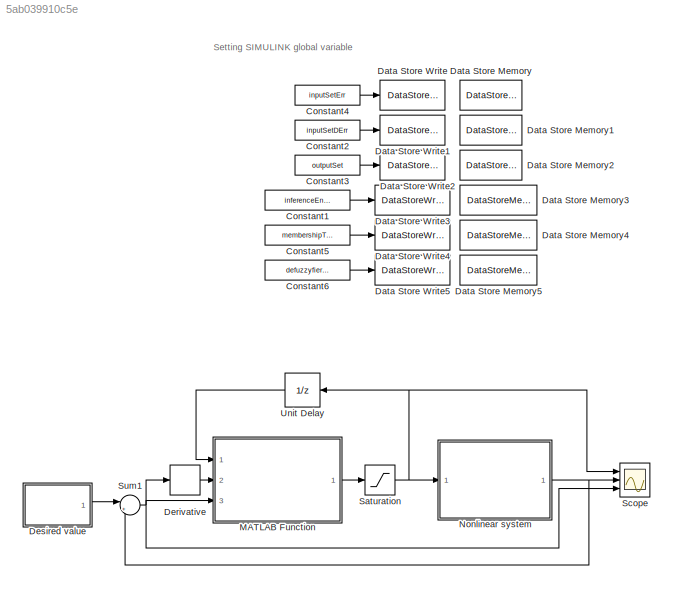
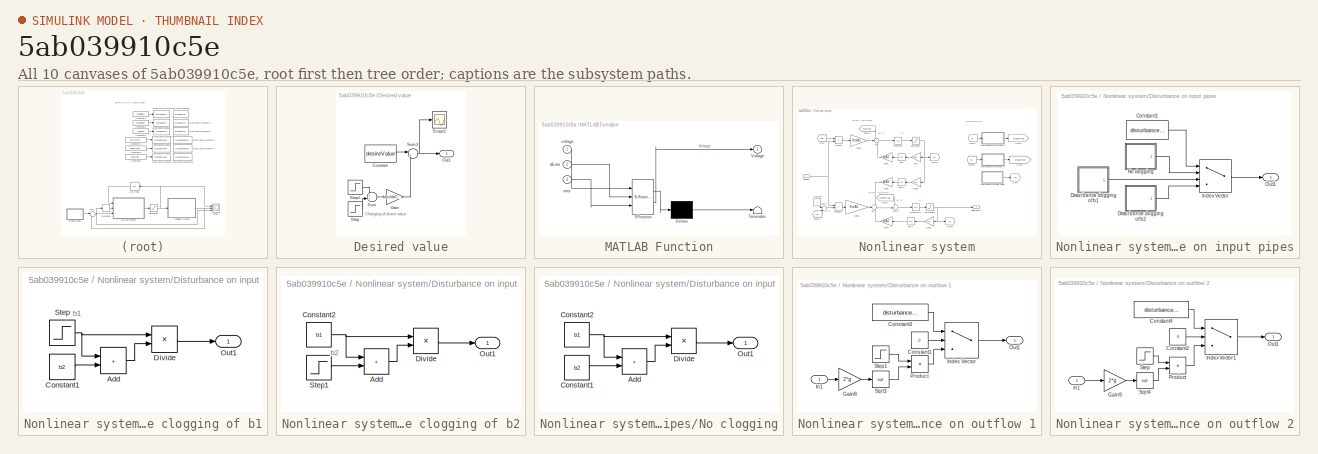
[diagram: thumbnail index - all 10 canvases of the model, root first then tree order]
MODEL slx_5ab039910c5e
KIND model
CONFIG AbsTol = auto
CONFIG EnableMultiTasking = off
CONFIG FixedStep = T_s
CONFIG MaxStep = auto
CONFIG MinStep = auto
CONFIG RelTol = 1e-3
CONFIG SampleTimeConstraint = Unconstrained
CONFIG SolverName = FixedStepAuto
CONFIG StartTime = 0.0
CONFIG StopTime = 600
BLOCK [Constant] Constant1
  Value = inferenceEngine
BLOCK [Constant] Constant2
  Value = inputSetDErr
BLOCK [Constant] Constant3
  Value = outputSet
BLOCK [Constant] Constant4
  Value = inputSetErr
BLOCK [Constant] Constant5
  Value = membershipType
BLOCK [Constant] Constant6
  Value = defuzzyfierType
BLOCK [DataStoreMemory] Data Store Memory
  DataStoreName = inputSetErr
  InitialValue = inputSetErr
  OutDataTypeStr = double
  ReadBeforeWriteMsg = warning
  ShowAdditionalParam = off
  SignalType = real
  WriteAfterReadMsg = warning
  WriteAfterWriteMsg = warning
BLOCK [DataStoreMemory] Data Store Memory1
  DataStoreName = inputSetDErr
  InitialValue = inputSetDErr
  OutDataTypeStr = double
  ReadBeforeWriteMsg = warning
  ShowAdditionalParam = off
  SignalType = real
  WriteAfterReadMsg = warning
  WriteAfterWriteMsg = warning
BLOCK [DataStoreMemory] Data Store Memory2
  DataStoreName = outputSet
  InitialValue = outputSet
  OutDataTypeStr = double
  ShowAdditionalParam = off
  SignalType = real
BLOCK [DataStoreMemory] Data Store Memory3
  DataStoreName = inferenceEngine
  InitialValue = inferenceEngine
  OutDataTypeStr = double
  ReadBeforeWriteMsg = warning
  ShowAdditionalParam = off
  SignalType = real
  WriteAfterReadMsg = warning
  WriteAfterWriteMsg = warning
BLOCK [DataStoreMemory] Data Store Memory4
  DataStoreName = membershipType
  InitialValue = membershipType
  OutDataTypeStr = double
  ReadBeforeWriteMsg = warning
  ShowAdditionalParam = off
  SignalType = real
  WriteAfterReadMsg = warning
  WriteAfterWriteMsg = warning
BLOCK [DataStoreMemory] Data Store Memory5
  DataStoreName = defuzzyfierType
  InitialValue = defuzzyfierType
  OutDataTypeStr = double
  ReadBeforeWriteMsg = warning
  ShowAdditionalParam = off
  SignalType = real
  WriteAfterReadMsg = warning
  WriteAfterWriteMsg = warning
BLOCK [DataStoreWrite] Data Store Write
  DataStoreName = inputSetErr
  Ports = [1]
BLOCK [DataStoreWrite] Data Store Write1
  DataStoreName = inputSetDErr
  Ports = [1]
BLOCK [DataStoreWrite] Data Store Write2
  DataStoreName = outputSet
  Ports = [1]
BLOCK [DataStoreWrite] Data Store Write3
  DataStoreName = inferenceEngine
  Ports = [1]
BLOCK [DataStoreWrite] Data Store Write4
  DataStoreName = membershipType
  Ports = [1]
BLOCK [DataStoreWrite] Data Store Write5
  DataStoreName = defuzzyfierType
  Ports = [1]
BLOCK [Derivative] Derivative
BLOCK [SubSystem] Desired value
  Ports = [0, 1]
  RequestExecContextInheritance = off
BLOCK [Constant] Desired value/Constant
  Value = desireValue
BLOCK [Gain] Desired value/Gain
  Gain = desValChange
BLOCK [Outport] Desired value/Out1
BLOCK [Scope] Desired value/Scope1
  Floating = off
  NumInputPorts = 1
  Ports = [1]
  ScopeSpecificationString = Simulink.scopes.TimeScopeBlockCfg('CurrentConfiguration', extmgr.ConfigurationSet(extmgr.Configuration('Core','General UI',true),extmgr.Configuration('Core','Source UI',true),extmgr.Configuration('Sources','WiredSimulink',true,'DataLogging',true,'DataLoggingSaveFormat','StructureWithTime','DataLoggingVariableName','ScopeData1'),extmgr.Configuration('Visuals','Time Domain',true,'SerializedDisplays'...<+1565ch>
BLOCK [Step] Desired value/Step
  After = desireValue
  SampleTime = 0
  Time = SimTime/3
BLOCK [Step] Desired value/Step1
  After = -desireValue/2
  SampleTime = 0
  Time = 2*SimTime/3
BLOCK [Sum] Desired value/Sum
  Ports = [2, 1]
BLOCK [Sum] Desired value/Sum2
  Inputs = |++
  Ports = [2, 1]
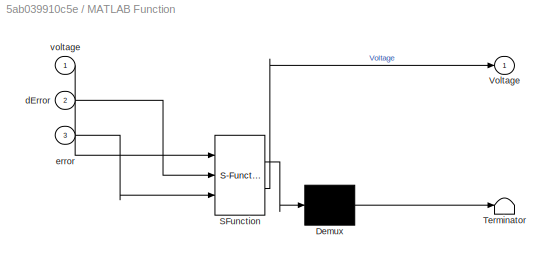
BLOCK [SubSystem] MATLAB Function
  ErrorFcn = Stateflow.Translate.translate
  PermitHierarchicalResolution = ExplicitOnly
  Ports = [3, 1]
  RequestExecContextInheritance = off
  SFBlockType = MATLAB Function
  TreatAsAtomicUnit = on
BLOCK [Demux] MATLAB Function/ Demux 
  Outputs = 1
  Ports = [1, 1]
BLOCK [S-Function] MATLAB Function/ SFunction 
  EnableBusSupport = on
  FunctionName = sf_sfun
  PortCounts = [3 2]
  Ports = [3, 2]
  SFcnIsStateOwnerBlock = off
  SFunctionDeploymentMode = off
  Tag = Stateflow S-Function 2
BLOCK [Terminator] MATLAB Function/ Terminator 
BLOCK [Outport] MATLAB Function/Voltage
BLOCK [Inport] MATLAB Function/dError
  Port = 2
BLOCK [Inport] MATLAB Function/error
  Port = 3
BLOCK [Inport] MATLAB Function/voltage
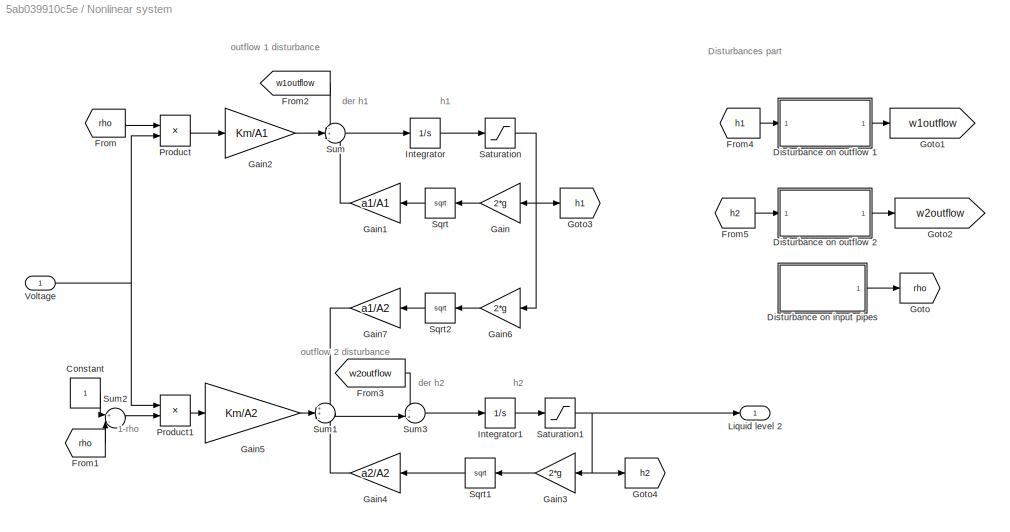
BLOCK [SubSystem] Nonlinear system
  Ports = [1, 1]
  RequestExecContextInheritance = off
BLOCK [Constant] Nonlinear system/Constant
BLOCK [SubSystem] Nonlinear system/Disturbance on input pipes
  Ports = [0, 1]
  RequestExecContextInheritance = off
BLOCK [Constant] Nonlinear system/Disturbance on input pipes/Constant1
  Value = disturbanceInput
BLOCK [SubSystem] Nonlinear system/Disturbance on input pipes/Disturbance clogging of b1
  Ports = [0, 1]
  RequestExecContextInheritance = off
BLOCK [Sum] Nonlinear system/Disturbance on input pipes/Disturbance clogging of b1/Add
  IconShape = rectangular
  Ports = [2, 1]
BLOCK [Constant] Nonlinear system/Disturbance on input pipes/Disturbance clogging of b1/Constant1
  Value = b2
BLOCK [Product] Nonlinear system/Disturbance on input pipes/Disturbance clogging of b1/Divide
  Inputs = */
  Ports = [2, 1]
BLOCK [Outport] Nonlinear system/Disturbance on input pipes/Disturbance clogging of b1/Out1
BLOCK [Step] Nonlinear system/Disturbance on input pipes/Disturbance clogging of b1/Step
  After = b1*0.3
  Before = b1
  SampleTime = 0
  Time = SimTime/2
BLOCK [SubSystem] Nonlinear system/Disturbance on input pipes/Disturbance clogging of b2
  Ports = [0, 1]
  RequestExecContextInheritance = off
BLOCK [Sum] Nonlinear system/Disturbance on input pipes/Disturbance clogging of b2/Add
  IconShape = rectangular
  Ports = [2, 1]
BLOCK [Constant] Nonlinear system/Disturbance on input pipes/Disturbance clogging of b2/Constant2
  Value = b1
BLOCK [Product] Nonlinear system/Disturbance on input pipes/Disturbance clogging of b2/Divide
  Inputs = */
  Ports = [2, 1]
BLOCK [Outport] Nonlinear system/Disturbance on input pipes/Disturbance clogging of b2/Out1
BLOCK [Step] Nonlinear system/Disturbance on input pipes/Disturbance clogging of b2/Step1
  After = b2*0.3
  Before = b2
  SampleTime = 0
  Time = SimTime/2
BLOCK [MultiPortSwitch] Nonlinear system/Disturbance on input pipes/Index Vector
  DataPortOrder = Zero-based contiguous
  InputSameDT = off
  Ports = [4, 1]
  SaturateOnIntegerOverflow = off
  zeroidx = on
BLOCK [SubSystem] Nonlinear system/Disturbance on input pipes/No clogging
  Ports = [0, 1]
  RequestExecContextInheritance = off
BLOCK [Sum] Nonlinear system/Disturbance on input pipes/No clogging/Add
  IconShape = rectangular
  Ports = [2, 1]
BLOCK [Constant] Nonlinear system/Disturbance on input pipes/No clogging/Constant1
  Value = b2
BLOCK [Constant] Nonlinear system/Disturbance on input pipes/No clogging/Constant2
  Value = b1
BLOCK [Product] Nonlinear system/Disturbance on input pipes/No clogging/Divide
  Inputs = */
  Ports = [2, 1]
BLOCK [Outport] Nonlinear system/Disturbance on input pipes/No clogging/Out1
BLOCK [Outport] Nonlinear system/Disturbance on input pipes/Out1
BLOCK [SubSystem] Nonlinear system/Disturbance on outflow 1
  Ports = [1, 1]
  RequestExecContextInheritance = off
BLOCK [Constant] Nonlinear system/Disturbance on outflow 1/Constant1
  Value = 0
BLOCK [Constant] Nonlinear system/Disturbance on outflow 1/Constant3
  Value = disturbanceOutflow1
BLOCK [Gain] Nonlinear system/Disturbance on outflow 1/Gain8
  Gain = 2*g
BLOCK [Inport] Nonlinear system/Disturbance on outflow 1/In1
BLOCK [MultiPortSwitch] Nonlinear system/Disturbance on outflow 1/Index Vector
  DataPortOrder = Zero-based contiguous
  InputSameDT = off
  Inputs = 2
  Ports = [3, 1]
  SaturateOnIntegerOverflow = off
  zeroidx = on
BLOCK [Outport] Nonlinear system/Disturbance on outflow 1/Out1
BLOCK [Product] Nonlinear system/Disturbance on outflow 1/Product
  Ports = [2, 1]
BLOCK [Sqrt] Nonlinear system/Disturbance on outflow 1/Sqrt3
BLOCK [Step] Nonlinear system/Disturbance on outflow 1/Step1
  After = 0.01
  SampleTime = 0
  Time = SimTime/2
BLOCK [SubSystem] Nonlinear system/Disturbance on outflow 2
  Ports = [1, 1]
  RequestExecContextInheritance = off
BLOCK [Constant] Nonlinear system/Disturbance on outflow 2/Constant2
  Value = 0
BLOCK [Constant] Nonlinear system/Disturbance on outflow 2/Constant4
  Value = disturbanceOutflow2
BLOCK [Gain] Nonlinear system/Disturbance on outflow 2/Gain9
  Gain = 2*g
BLOCK [Inport] Nonlinear system/Disturbance on outflow 2/In1
BLOCK [MultiPortSwitch] Nonlinear system/Disturbance on outflow 2/Index Vector1
  DataPortOrder = Zero-based contiguous
  InputSameDT = off
  Inputs = 2
  Ports = [3, 1]
  SaturateOnIntegerOverflow = off
  zeroidx = on
BLOCK [Outport] Nonlinear system/Disturbance on outflow 2/Out1
BLOCK [Product] Nonlinear system/Disturbance on outflow 2/Product
  Ports = [2, 1]
BLOCK [Sqrt] Nonlinear system/Disturbance on outflow 2/Sqrt4
BLOCK [Step] Nonlinear system/Disturbance on outflow 2/Step
  After = 0.01
  SampleTime = 0
  Time = SimTime/2
BLOCK [From] Nonlinear system/From
  GotoTag = rho
BLOCK [From] Nonlinear system/From1
  GotoTag = rho
BLOCK [From] Nonlinear system/From2
  GotoTag = w1outflow
BLOCK [From] Nonlinear system/From3
  GotoTag = w2outflow
BLOCK [From] Nonlinear system/From4
  GotoTag = h1
BLOCK [From] Nonlinear system/From5
  GotoTag = h2
BLOCK [Gain] Nonlinear system/Gain
  Gain = 2*g
  NameLocation = top
BLOCK [Gain] Nonlinear system/Gain1
  Gain = a1/A1
BLOCK [Gain] Nonlinear system/Gain2
  Gain = Km/A1
BLOCK [Gain] Nonlinear system/Gain3
  Gain = 2*g
  NameLocation = top
BLOCK [Gain] Nonlinear system/Gain4
  Gain = a2/A2
BLOCK [Gain] Nonlinear system/Gain5
  Gain = Km/A2
BLOCK [Gain] Nonlinear system/Gain6
  Gain = 2*g
  NameLocation = top
BLOCK [Gain] Nonlinear system/Gain7
  Gain = a1/A2
BLOCK [Goto] Nonlinear system/Goto
  GotoTag = rho
BLOCK [Goto] Nonlinear system/Goto1
  GotoTag = w1outflow
BLOCK [Goto] Nonlinear system/Goto2
  GotoTag = w2outflow
BLOCK [Goto] Nonlinear system/Goto3
  GotoTag = h1
BLOCK [Goto] Nonlinear system/Goto4
  GotoTag = h2
BLOCK [Integrator] Nonlinear system/Integrator
  InitialCondition = h1
  Ports = [1, 1]
BLOCK [Integrator] Nonlinear system/Integrator1
  InitialCondition = h2
  Ports = [1, 1]
BLOCK [Outport] Nonlinear system/Liquid level 2
BLOCK [Product] Nonlinear system/Product
  Ports = [2, 1]
BLOCK [Product] Nonlinear system/Product1
  Ports = [2, 1]
BLOCK [Saturate] Nonlinear system/Saturation
  LowerLimit = 0
  UpperLimit = 100000
BLOCK [Saturate] Nonlinear system/Saturation1
  LowerLimit = 0
  UpperLimit = 100000
BLOCK [Sqrt] Nonlinear system/Sqrt
  NameLocation = top
BLOCK [Sqrt] Nonlinear system/Sqrt1
  NameLocation = top
BLOCK [Sqrt] Nonlinear system/Sqrt2
  NameLocation = top
BLOCK [Sum] Nonlinear system/Sum
  Inputs = -+-
  Ports = [3, 1]
BLOCK [Sum] Nonlinear system/Sum1
  Inputs = ++-
  Ports = [3, 1]
BLOCK [Sum] Nonlinear system/Sum2
  Inputs = +-
  Ports = [2, 1]
BLOCK [Sum] Nonlinear system/Sum3
  Inputs = -+|
  Ports = [2, 1]
BLOCK [Inport] Nonlinear system/Voltage
BLOCK [Saturate] Saturation
  LowerLimit = 0
  UpperLimit = satValue
BLOCK [Scope] Scope
  Floating = off
  NumInputPorts = 3
  Ports = [3]
  ScopeSpecificationString = Simulink.scopes.TimeScopeBlockCfg('CurrentConfiguration', extmgr.ConfigurationSet(extmgr.Configuration('Core','General UI',true),extmgr.Configuration('Core','Source UI',true),extmgr.Configuration('Sources','WiredSimulink',true,'DataLogging',true,'DataLoggingSaveFormat','StructureWithTime'),extmgr.Configuration('Visuals','Time Domain',true,'SerializedDisplays',{struct('MinYLimReal','-1.00000','MaxY...<+2862ch>
BLOCK [Sum] Sum1
  Inputs = |+-
  Ports = [2, 1]
BLOCK [UnitDelay] Unit Delay
  HasFrameUpgradeWarning = on
  SampleTime = -1
ANNOTATION (root): Setting SIMULINK global variable
ANNOTATION Desired value: Changing of desire value
ANNOTATION Nonlinear system: 1-rho
ANNOTATION Nonlinear system: outflow 1 disturbance
ANNOTATION Nonlinear system: outflow 2 disturbance
ANNOTATION Nonlinear system: der h1
ANNOTATION Nonlinear system: der h2
ANNOTATION Nonlinear system: h1
ANNOTATION Nonlinear system: h2
ANNOTATION Nonlinear system: Disturbances part
ANNOTATION Nonlinear system/Disturbance on input pipes/Disturbance clogging of b1: b1
ANNOTATION Nonlinear system/Disturbance on input pipes/Disturbance clogging of b2: b2
LINE Constant1:1 -> Data Store Write3:1
LINE Constant2:1 -> Data Store Write1:1
LINE Constant3:1 -> Data Store Write2:1
LINE Constant4:1 -> Data Store Write:1
LINE Constant5:1 -> Data Store Write4:1
LINE Constant6:1 -> Data Store Write5:1
LINE Derivative:1 -> MATLAB Function:2
LINE Desired value/Constant:1 -> Desired value/Sum2:1
LINE Desired value/Gain:1 -> Desired value/Sum2:2
LINE Desired value/Step1:1 -> Desired value/Sum:1
LINE Desired value/Step:1 -> Desired value/Sum:2
NET Desired value/Sum2:1 -> Desired value/Out1:1, Desired value/Scope1:1
LINE Desired value/Sum:1 -> Desired value/Gain:1
LINE Desired value:1 -> Sum1:1
LINE MATLAB Function:1 -> Saturation:1
LINE Nonlinear system/Constant:1 -> Nonlinear system/Sum2:1
LINE Nonlinear system/Disturbance on input pipes/Constant1:1 -> Nonlinear system/Disturbance on input pipes/Index Vector:1
LINE Nonlinear system/Disturbance on input pipes/Disturbance clogging of b1/Add:1 -> Nonlinear system/Disturbance on input pipes/Disturbance clogging of b1/Divide:2
LINE Nonlinear system/Disturbance on input pipes/Disturbance clogging of b1/Constant1:1 -> Nonlinear system/Disturbance on input pipes/Disturbance clogging of b1/Add:2
LINE Nonlinear system/Disturbance on input pipes/Disturbance clogging of b1/Divide:1 -> Nonlinear system/Disturbance on input pipes/Disturbance clogging of b1/Out1:1
NET Nonlinear system/Disturbance on input pipes/Disturbance clogging of b1/Step:1 -> Nonlinear system/Disturbance on input pipes/Disturbance clogging of b1/Add:1, Nonlinear system/Disturbance on input pipes/Disturbance clogging of b1/Divide:1
LINE Nonlinear system/Disturbance on input pipes/Disturbance clogging of b1:1 -> Nonlinear system/Disturbance on input pipes/Index Vector:3
LINE Nonlinear system/Disturbance on input pipes/Disturbance clogging of b2/Add:1 -> Nonlinear system/Disturbance on input pipes/Disturbance clogging of b2/Divide:2
NET Nonlinear system/Disturbance on input pipes/Disturbance clogging of b2/Constant2:1 -> Nonlinear system/Disturbance on input pipes/Disturbance clogging of b2/Add:1, Nonlinear system/Disturbance on input pipes/Disturbance clogging of b2/Divide:1
LINE Nonlinear system/Disturbance on input pipes/Disturbance clogging of b2/Divide:1 -> Nonlinear system/Disturbance on input pipes/Disturbance clogging of b2/Out1:1
LINE Nonlinear system/Disturbance on input pipes/Disturbance clogging of b2/Step1:1 -> Nonlinear system/Disturbance on input pipes/Disturbance clogging of b2/Add:2
LINE Nonlinear system/Disturbance on input pipes/Disturbance clogging of b2:1 -> Nonlinear system/Disturbance on input pipes/Index Vector:4
LINE Nonlinear system/Disturbance on input pipes/Index Vector:1 -> Nonlinear system/Disturbance on input pipes/Out1:1
LINE Nonlinear system/Disturbance on input pipes/No clogging/Add:1 -> Nonlinear system/Disturbance on input pipes/No clogging/Divide:2
LINE Nonlinear system/Disturbance on input pipes/No clogging/Constant1:1 -> Nonlinear system/Disturbance on input pipes/No clogging/Add:2
NET Nonlinear system/Disturbance on input pipes/No clogging/Constant2:1 -> Nonlinear system/Disturbance on input pipes/No clogging/Add:1, Nonlinear system/Disturbance on input pipes/No clogging/Divide:1
LINE Nonlinear system/Disturbance on input pipes/No clogging/Divide:1 -> Nonlinear system/Disturbance on input pipes/No clogging/Out1:1
LINE Nonlinear system/Disturbance on input pipes/No clogging:1 -> Nonlinear system/Disturbance on input pipes/Index Vector:2
LINE Nonlinear system/Disturbance on input pipes:1 -> Nonlinear system/Goto:1
LINE Nonlinear system/Disturbance on outflow 1/Constant1:1 -> Nonlinear system/Disturbance on outflow 1/Index Vector:2
LINE Nonlinear system/Disturbance on outflow 1/Constant3:1 -> Nonlinear system/Disturbance on outflow 1/Index Vector:1
LINE Nonlinear system/Disturbance on outflow 1/Gain8:1 -> Nonlinear system/Disturbance on outflow 1/Sqrt3:1
LINE Nonlinear system/Disturbance on outflow 1/In1:1 -> Nonlinear system/Disturbance on outflow 1/Gain8:1
LINE Nonlinear system/Disturbance on outflow 1/Index Vector:1 -> Nonlinear system/Disturbance on outflow 1/Out1:1
LINE Nonlinear system/Disturbance on outflow 1/Product:1 -> Nonlinear system/Disturbance on outflow 1/Index Vector:3
LINE Nonlinear system/Disturbance on outflow 1/Sqrt3:1 -> Nonlinear system/Disturbance on outflow 1/Product:2
LINE Nonlinear system/Disturbance on outflow 1/Step1:1 -> Nonlinear system/Disturbance on outflow 1/Product:1
LINE Nonlinear system/Disturbance on outflow 1:1 -> Nonlinear system/Goto1:1
LINE Nonlinear system/Disturbance on outflow 2/Constant2:1 -> Nonlinear system/Disturbance on outflow 2/Index Vector1:2
LINE Nonlinear system/Disturbance on outflow 2/Constant4:1 -> Nonlinear system/Disturbance on outflow 2/Index Vector1:1
LINE Nonlinear system/Disturbance on outflow 2/Gain9:1 -> Nonlinear system/Disturbance on outflow 2/Sqrt4:1
LINE Nonlinear system/Disturbance on outflow 2/In1:1 -> Nonlinear system/Disturbance on outflow 2/Gain9:1
LINE Nonlinear system/Disturbance on outflow 2/Index Vector1:1 -> Nonlinear system/Disturbance on outflow 2/Out1:1
LINE Nonlinear system/Disturbance on outflow 2/Product:1 -> Nonlinear system/Disturbance on outflow 2/Index Vector1:3
LINE Nonlinear system/Disturbance on outflow 2/Sqrt4:1 -> Nonlinear system/Disturbance on outflow 2/Product:2
LINE Nonlinear system/Disturbance on outflow 2/Step:1 -> Nonlinear system/Disturbance on outflow 2/Product:1
LINE Nonlinear system/Disturbance on outflow 2:1 -> Nonlinear system/Goto2:1
LINE Nonlinear system/From1:1 -> Nonlinear system/Sum2:2
LINE Nonlinear system/From2:1 -> Nonlinear system/Sum:1
LINE Nonlinear system/From3:1 -> Nonlinear system/Sum3:1
LINE Nonlinear system/From4:1 -> Nonlinear system/Disturbance on outflow 1:1
LINE Nonlinear system/From5:1 -> Nonlinear system/Disturbance on outflow 2:1
LINE Nonlinear system/From:1 -> Nonlinear system/Product:1
LINE Nonlinear system/Gain1:1 -> Nonlinear system/Sum:3
LINE Nonlinear system/Gain2:1 -> Nonlinear system/Sum:2
LINE Nonlinear system/Gain3:1 -> Nonlinear system/Sqrt1:1
LINE Nonlinear system/Gain4:1 -> Nonlinear system/Sum1:3
LINE Nonlinear system/Gain5:1 -> Nonlinear system/Sum1:2
LINE Nonlinear system/Gain6:1 -> Nonlinear system/Sqrt2:1
LINE Nonlinear system/Gain7:1 -> Nonlinear system/Sum1:1
LINE Nonlinear system/Gain:1 -> Nonlinear system/Sqrt:1
LINE Nonlinear system/Integrator1:1 -> Nonlinear system/Saturation1:1
LINE Nonlinear system/Integrator:1 -> Nonlinear system/Saturation:1
LINE Nonlinear system/Product1:1 -> Nonlinear system/Gain5:1
LINE Nonlinear system/Product:1 -> Nonlinear system/Gain2:1
NET Nonlinear system/Saturation1:1 -> Nonlinear system/Gain3:1, Nonlinear system/Goto4:1, Nonlinear system/Liquid level 2:1
NET Nonlinear system/Saturation:1 -> Nonlinear system/Gain6:1, Nonlinear system/Gain:1, Nonlinear system/Goto3:1
LINE Nonlinear system/Sqrt1:1 -> Nonlinear system/Gain4:1
LINE Nonlinear system/Sqrt2:1 -> Nonlinear system/Gain7:1
LINE Nonlinear system/Sqrt:1 -> Nonlinear system/Gain1:1
LINE Nonlinear system/Sum1:1 -> Nonlinear system/Sum3:2
LINE Nonlinear system/Sum2:1 -> Nonlinear system/Product1:2
LINE Nonlinear system/Sum3:1 -> Nonlinear system/Integrator1:1
LINE Nonlinear system/Sum:1 -> Nonlinear system/Integrator:1
NET Nonlinear system/Voltage:1 -> Nonlinear system/Product1:1, Nonlinear system/Product:2
NET Nonlinear system:1 -> Scope:2, Sum1:2
NET Saturation:1 -> Nonlinear system:1, Scope:1, Unit Delay:1
NET Sum1:1 -> Derivative:1, MATLAB Function:3, Scope:3
LINE Unit Delay:1 -> MATLAB Function:1
note: NET lines group one-source signal fan-out (src -> all destinations, sorted); 1:1 wires keep LINE
CHART MATLAB Function states=1 transitions=1
  STATE_LABEL 'eML_blk_kernel()'
  STATE_LABEL "SCRIPT:\nfunction Voltage  = FuzzyController(voltage, dError, error)\n%%  work 1: deadline: 16.11.2020\n%%  work 2: deadline: 15.12.2020\n\n    global inputSetErr inputSetDErr outputSet\n    global inferenceEngine membershipType defuzzyfierType\n\n    infEngine = 'Mamdani minimum';\n    memType = 'Triangullar';\n    defType = 'CA';\n\n    switch inferenceEngine\n        case 1\n            infEngine = 'Mamdani ...<+849ch>"
CHART  states=0 transitions=0
